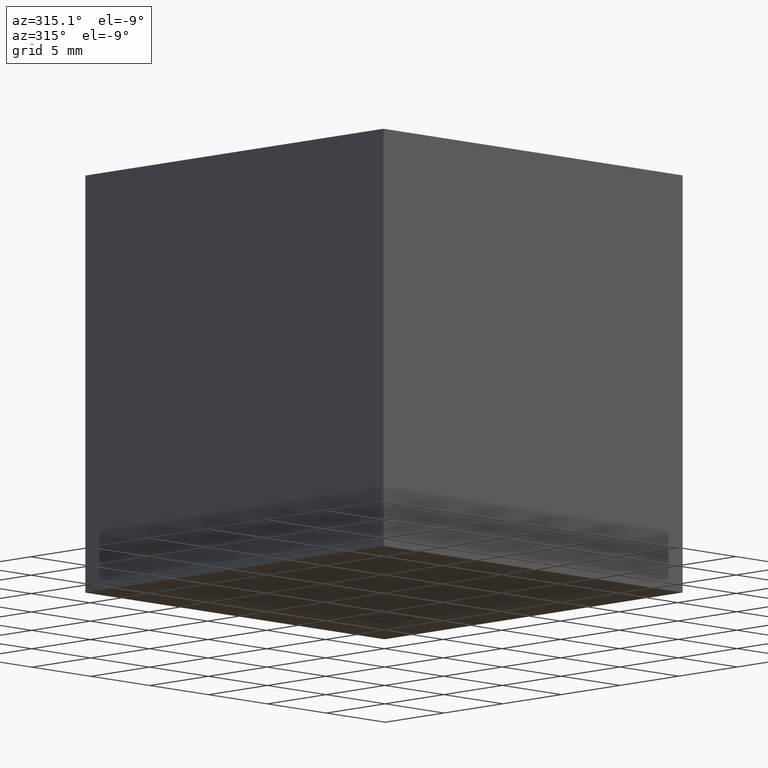
[diagram: clean part render]
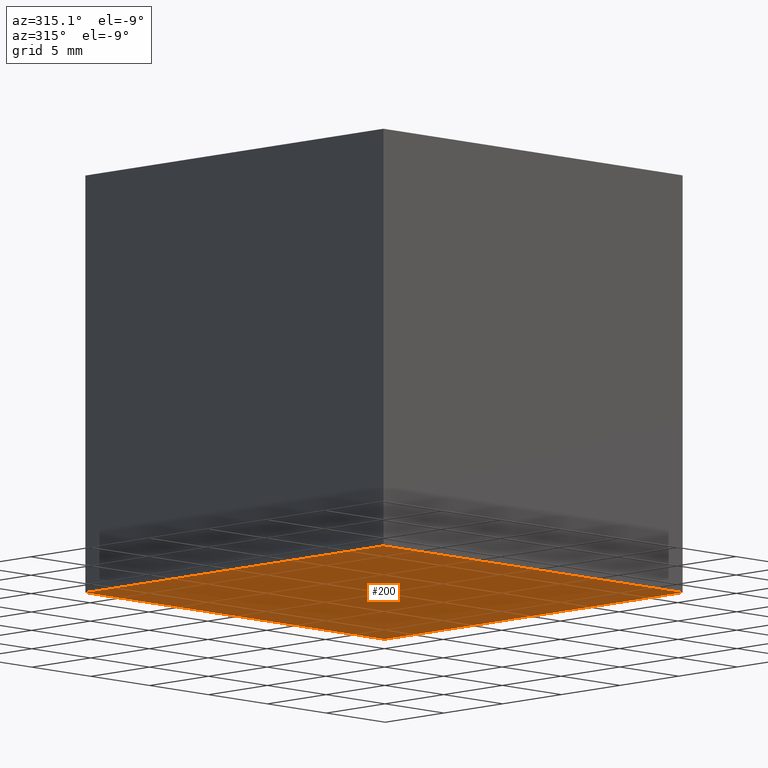
[diagram: same view with one face highlighted and labeled with its STEP entity id]
A machine part, auxiliary view. The second image highlights one B-rep face of the part: STEP entity #200.
In plain terms, the highlighted planar face has unit normal (0, 0, -1).
Its self-contained STEP definition (entity closure, byte-faithful):
#2 = VERTEX_POINT ( 'NONE', #144 ) ;
#18 = VECTOR ( 'NONE', #189, 1000.000000000000000 ) ;
#22 = VERTEX_POINT ( 'NONE', #271 ) ;
#29 = FACE_OUTER_BOUND ( 'NONE', #237, .T. ) ;
#37 = VERTEX_POINT ( 'NONE', #99 ) ;
#39 = LINE ( 'NONE', #151, #145 ) ;
#50 = DIRECTION ( 'NONE',  ( 0.0000000000000000000, -1.000000000000000000, 0.0000000000000000000 ) ) ;
#62 = LINE ( 'NONE', #80, #209 ) ;
#63 = CARTESIAN_POINT ( 'NONE',  ( 0.0000000000000000000, 25.39999999999999900, -25.39999999999999900 ) ) ;
#69 = VECTOR ( 'NONE', #116, 1000.000000000000000 ) ;
#80 = CARTESIAN_POINT ( 'NONE',  ( 0.0000000000000000000, 25.39999999999999900, -25.39999999999999900 ) ) ;
#95 = EDGE_CURVE ( 'NONE', #22, #233, #125, .T. ) ;
#96 = ORIENTED_EDGE ( 'NONE', *, *, #192, .T. ) ;
#99 = CARTESIAN_POINT ( 'NONE',  ( 25.39999999999999900, 0.0000000000000000000, -25.39999999999999900 ) ) ;
#100 = ORIENTED_EDGE ( 'NONE', *, *, #95, .T. ) ;
#116 = DIRECTION ( 'NONE',  ( 1.000000000000000000, 0.0000000000000000000, 0.0000000000000000000 ) ) ;
#125 = LINE ( 'NONE', #283, #69 ) ;
#131 = ORIENTED_EDGE ( 'NONE', *, *, #139, .F. ) ;
#133 = DIRECTION ( 'NONE',  ( -1.000000000000000000, 0.0000000000000000000, -0.0000000000000000000 ) ) ;
#137 = CARTESIAN_POINT ( 'NONE',  ( 0.0000000000000000000, 0.0000000000000000000, -25.39999999999999900 ) ) ;
#139 = EDGE_CURVE ( 'NONE', #22, #2, #62, .T. ) ;
#144 = CARTESIAN_POINT ( 'NONE',  ( 0.0000000000000000000, 0.0000000000000000000, -25.39999999999999900 ) ) ;
#145 = VECTOR ( 'NONE', #247, 1000.000000000000000 ) ;
#151 = CARTESIAN_POINT ( 'NONE',  ( 25.39999999999999900, 25.39999999999999900, -25.39999999999999900 ) ) ;
#189 = DIRECTION ( 'NONE',  ( 1.000000000000000000, 0.0000000000000000000, 0.0000000000000000000 ) ) ;
#192 = EDGE_CURVE ( 'NONE', #233, #37, #39, .T. ) ;
#200 = ADVANCED_FACE ( 'NONE', ( #29 ), #258, .T. ) ;
#209 = VECTOR ( 'NONE', #50, 1000.000000000000000 ) ;
#222 = ORIENTED_EDGE ( 'NONE', *, *, #256, .F. ) ;
#224 = AXIS2_PLACEMENT_3D ( 'NONE', #63, #278, #133 ) ;
#233 = VERTEX_POINT ( 'NONE', #236 ) ;
#236 = CARTESIAN_POINT ( 'NONE',  ( 25.39999999999999900, 25.39999999999999900, -25.39999999999999900 ) ) ;
#237 = EDGE_LOOP ( 'NONE', ( #222, #131, #100, #96 ) ) ;
#247 = DIRECTION ( 'NONE',  ( 0.0000000000000000000, -1.000000000000000000, 0.0000000000000000000 ) ) ;
#256 = EDGE_CURVE ( 'NONE', #2, #37, #300, .T. ) ;
#258 = PLANE ( 'NONE',  #224 ) ;
#271 = CARTESIAN_POINT ( 'NONE',  ( 0.0000000000000000000, 25.39999999999999900, -25.39999999999999900 ) ) ;
#278 = DIRECTION ( 'NONE',  ( 0.0000000000000000000, 0.0000000000000000000, -1.000000000000000000 ) ) ;
#283 = CARTESIAN_POINT ( 'NONE',  ( 0.0000000000000000000, 25.39999999999999900, -25.39999999999999900 ) ) ;
#300 = LINE ( 'NONE', #137, #18 ) ;